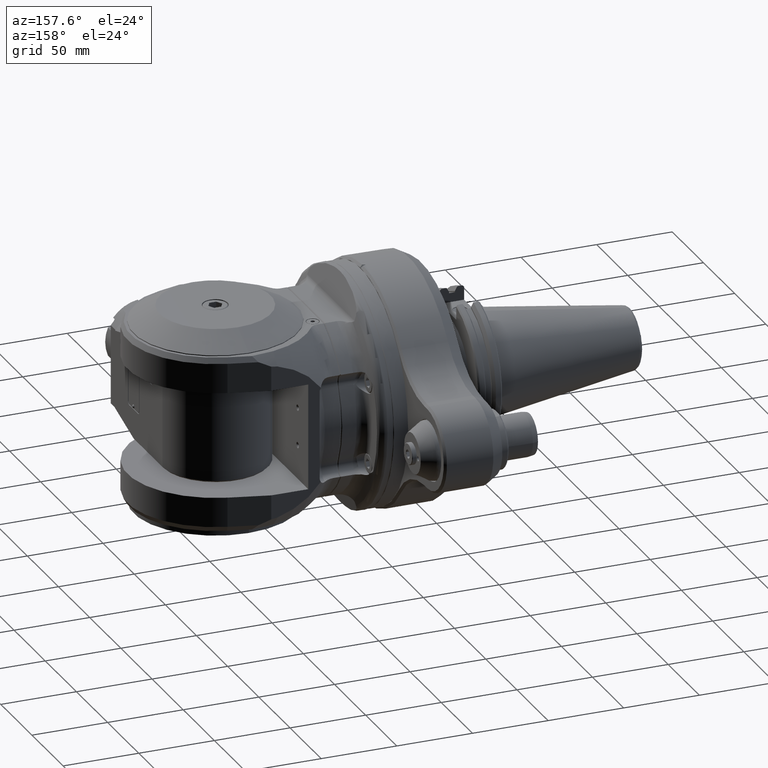
[diagram: clean part render]
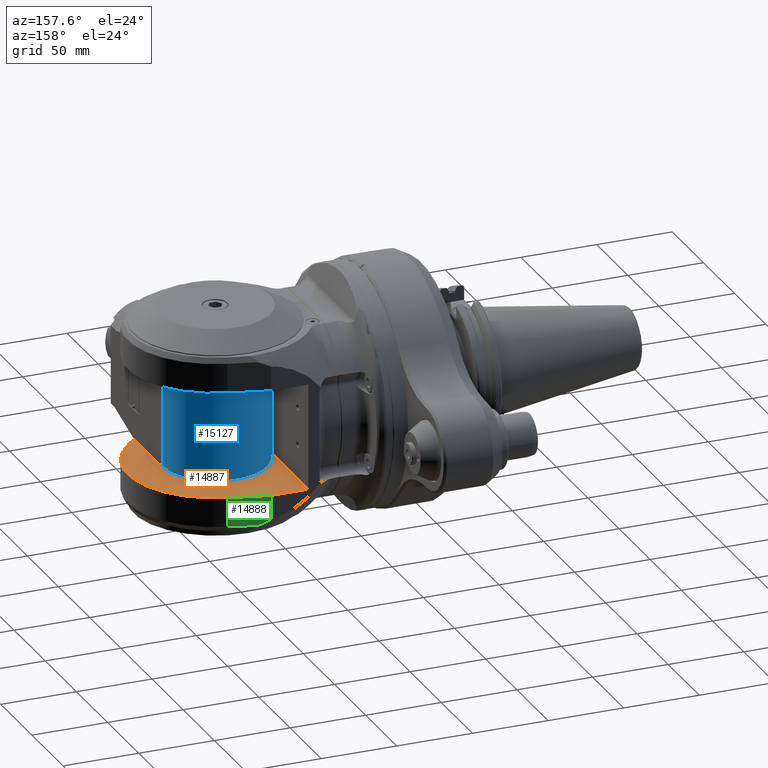
[diagram: same view with three faces highlighted in distinct colors, each labeled with its STEP entity id]
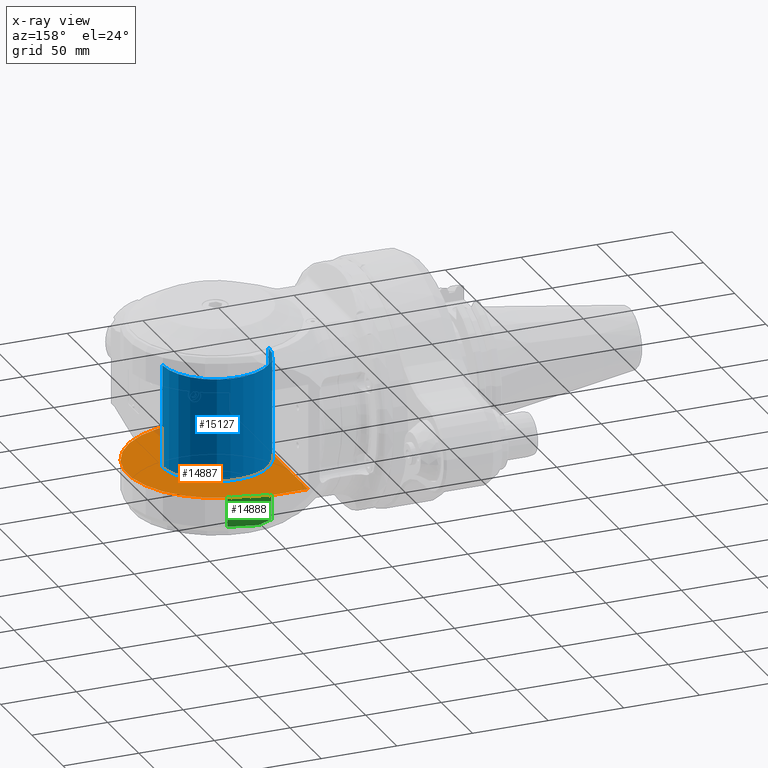
[diagram: x-ray of the same camera — body ghosted, the three highlighted faces saturated]
A machine part, auxiliary view with three faces highlighted in distinct colors.
The next image is the same camera in x-ray (body ghosted, the three faces saturated) — at least one of them is partly hidden behind the body in this view.
Their STEP definitions:

[orange] entity #14887 — the highlighted planar face has unit normal (-0, 0, -1).
#1012=PLANE('',#16270);
#1648=FACE_OUTER_BOUND('',#2586,.T.);
#2586=EDGE_LOOP('',(#11860,#11861,#11862,#11863,#11864,#11865));
#3703=LINE('',#37328,#4736);
#3710=LINE('',#37375,#4743);
#3718=LINE('',#37429,#4751);
#3719=LINE('',#37432,#4752);
#3720=LINE('',#37435,#4753);
#4736=VECTOR('',#19269,24.47559082222);
#4743=VECTOR('',#19286,126.);
#4751=VECTOR('',#19312,24.47559082222);
#4752=VECTOR('',#19315,26.9543613858507);
#4753=VECTOR('',#19318,26.9543613858507);
#5661=CIRCLE('',#16271,58.);
#6734=VERTEX_POINT('',#37324);
#6736=VERTEX_POINT('',#37327);
#6750=VERTEX_POINT('',#37373);
#6769=VERTEX_POINT('',#37427);
#6770=VERTEX_POINT('',#37431);
#6771=VERTEX_POINT('',#37433);
#8566=EDGE_CURVE('',#6736,#6734,#3703,.T.);
#8583=EDGE_CURVE('',#6734,#6750,#3710,.T.);
#8604=EDGE_CURVE('',#6769,#6750,#3718,.T.);
#8605=EDGE_CURVE('',#6769,#6770,#3719,.T.);
#8606=EDGE_CURVE('',#6770,#6771,#5661,.T.);
#8607=EDGE_CURVE('',#6771,#6736,#3720,.T.);
#11860=ORIENTED_EDGE('',*,*,#8583,.T.);
#11861=ORIENTED_EDGE('',*,*,#8604,.F.);
#11862=ORIENTED_EDGE('',*,*,#8605,.T.);
#11863=ORIENTED_EDGE('',*,*,#8606,.T.);
#11864=ORIENTED_EDGE('',*,*,#8607,.T.);
#11865=ORIENTED_EDGE('',*,*,#8566,.T.);
#14887=ADVANCED_FACE('',(#1648),#1012,.F.);
#16270=AXIS2_PLACEMENT_3D('',#37430,#19313,#19314);
#16271=AXIS2_PLACEMENT_3D('',#37434,#19316,#19317);
#19269=DIRECTION('',(-1.,0.,0.));
#19286=DIRECTION('',(0.,0.,-1.));
#19312=DIRECTION('',(-1.,0.,0.));
#19313=DIRECTION('center_axis',(0.,1.,0.));
#19314=DIRECTION('ref_axis',(1.,0.,0.));
#19315=DIRECTION('',(0.965925826289076,0.,0.258819045102493));
#19316=DIRECTION('center_axis',(0.,-1.,0.));
#19317=DIRECTION('ref_axis',(0.258819045102612,0.,-0.965925826289044));
#19318=DIRECTION('',(-0.965925826289076,0.,0.258819045102493));
#37324=CARTESIAN_POINT('',(24.5,35.,63.));
#37327=CARTESIAN_POINT('',(48.97559082222,35.,63.));
#37328=CARTESIAN_POINT('',(48.97559082222,35.,63.));
#37373=CARTESIAN_POINT('',(24.5,35.,-63.));
#37375=CARTESIAN_POINT('',(24.5,35.,63.));
#37427=CARTESIAN_POINT('',(48.97559082222,35.,-63.));
#37429=CARTESIAN_POINT('',(48.97559082222,35.,-63.));
#37430=CARTESIAN_POINT('Origin',(24.5,35.,-69.6000024));
#37431=CARTESIAN_POINT('',(75.01150461595,35.,-56.02369792477));
#37432=CARTESIAN_POINT('',(48.97559082222,35.,-63.));
#37433=CARTESIAN_POINT('',(75.01150461595,35.,56.02369792477));
#37434=CARTESIAN_POINT('Origin',(60.,35.,0.));
#37435=CARTESIAN_POINT('',(75.01150461595,35.,56.02369792477));

[blue] entity #15127 — the highlighted cylindrical surface (partial cylindrical patch) has radius 35 mm, axis along (0, -0, 1).
#1888=FACE_OUTER_BOUND('',#2852,.T.);
#2852=EDGE_LOOP('',(#12998,#12999,#13000,#13001));
#3894=LINE('',#39982,#4927);
#3901=LINE('',#40013,#4934);
#4927=VECTOR('',#20352,67.99999996999);
#4934=VECTOR('',#20375,67.99999996999);
#5847=CIRCLE('',#16708,35.);
#5848=CIRCLE('',#16709,35.);
#7068=VERTEX_POINT('',#39969);
#7071=VERTEX_POINT('',#39981);
#7083=VERTEX_POINT('',#40009);
#7084=VERTEX_POINT('',#40011);
#9114=EDGE_CURVE('',#7071,#7068,#3894,.T.);
#9127=EDGE_CURVE('',#7071,#7083,#5847,.F.);
#9128=EDGE_CURVE('',#7084,#7068,#5848,.F.);
#9129=EDGE_CURVE('',#7084,#7083,#3901,.T.);
#12998=ORIENTED_EDGE('',*,*,#9127,.F.);
#12999=ORIENTED_EDGE('',*,*,#9114,.T.);
#13000=ORIENTED_EDGE('',*,*,#9128,.F.);
#13001=ORIENTED_EDGE('',*,*,#9129,.T.);
#14449=CYLINDRICAL_SURFACE('',#16707,35.);
#15127=ADVANCED_FACE('',(#1888),#14449,.T.);
#16707=AXIS2_PLACEMENT_3D('',#40008,#20369,#20370);
#16708=AXIS2_PLACEMENT_3D('',#40010,#20371,#20372);
#16709=AXIS2_PLACEMENT_3D('',#40012,#20373,#20374);
#20352=DIRECTION('',(3.752344841731E-11,1.,7.60276298637943E-27));
#20369=DIRECTION('center_axis',(0.,-1.,0.));
#20370=DIRECTION('ref_axis',(-2.16290706997963E-14,0.,1.));
#20371=DIRECTION('center_axis',(-9.98335133621305E-25,1.,1.100166281885E-8));
#20372=DIRECTION('ref_axis',(1.,0.,5.25770186819346E-16));
#20373=DIRECTION('center_axis',(-8.77548339679659E-19,-1.,1.10016629466097E-8));
#20374=DIRECTION('ref_axis',(-1.,0.,-4.34732687940703E-14));
#20375=DIRECTION('',(-3.752334392574E-11,-1.,-3.80138149318971E-27));
#39969=CARTESIAN_POINT('',(94.9999999953189,33.9999999351853,1.16688692909199E-12));
#39981=CARTESIAN_POINT('',(94.9999999936784,-33.9999999365037,-5.13933400704154E-13));
#39982=CARTESIAN_POINT('',(94.9999999811671,-33.9999999863,1.17239551400417E-12));
#40008=CARTESIAN_POINT('Origin',(59.9999999999971,35.,1.15463194561016E-12));
#40009=CARTESIAN_POINT('',(25.0000000046731,-33.9999999351492,1.15189884475012E-12));
#40010=CARTESIAN_POINT('Origin',(59.9999999999971,-33.9999998681082,1.14932072291476E-12));
#40011=CARTESIAN_POINT('',(25.0000000063215,33.9999999365345,-5.13499577705861E-13));
#40012=CARTESIAN_POINT('Origin',(59.9999999999971,33.9999998681382,1.1597090159154E-12));
#40013=CARTESIAN_POINT('',(25.0000000188271,33.99999998627,1.15463194561016E-12));

[green] entity #14888 — the highlighted planar face has unit normal (-0.2588, -0.9659, 0).
#26=ELLIPSE('',#16273,439.769862777794,107.582639507099);
#1013=PLANE('',#16272);
#1649=FACE_OUTER_BOUND('',#2587,.T.);
#2587=EDGE_LOOP('',(#11866,#11867,#11868,#11869,#11870));
#3704=LINE('',#37330,#4737);
#3720=LINE('',#37435,#4753);
#3721=LINE('',#37438,#4754);
#3722=LINE('',#37440,#4755);
#4737=VECTOR('',#19270,16.09619086282);
#4753=VECTOR('',#19318,26.9543613858507);
#4754=VECTOR('',#19321,19.53589838486);
#4755=VECTOR('',#19322,19.0291882973205);
#6736=VERTEX_POINT('',#37327);
#6737=VERTEX_POINT('',#37329);
#6771=VERTEX_POINT('',#37433);
#6772=VERTEX_POINT('',#37437);
#6773=VERTEX_POINT('',#37439);
#8567=EDGE_CURVE('',#6737,#6736,#3704,.T.);
#8607=EDGE_CURVE('',#6771,#6736,#3720,.T.);
#8608=EDGE_CURVE('',#6772,#6771,#3721,.T.);
#8609=EDGE_CURVE('',#6772,#6773,#3722,.T.);
#8610=EDGE_CURVE('',#6773,#6737,#26,.T.);
#11866=ORIENTED_EDGE('',*,*,#8607,.F.);
#11867=ORIENTED_EDGE('',*,*,#8608,.F.);
#11868=ORIENTED_EDGE('',*,*,#8609,.T.);
#11869=ORIENTED_EDGE('',*,*,#8610,.T.);
#11870=ORIENTED_EDGE('',*,*,#8567,.T.);
#14888=ADVANCED_FACE('',(#1649),#1013,.F.);
#16272=AXIS2_PLACEMENT_3D('',#37436,#19319,#19320);
#16273=AXIS2_PLACEMENT_3D('',#37441,#19323,#19324);
#19270=DIRECTION('',(-1.598437337202E-12,-1.,4.118591647638E-13));
#19318=DIRECTION('',(-0.965925826289076,0.,0.258819045102493));
#19319=DIRECTION('center_axis',(-0.258819045102493,0.,-0.965925826289076));
#19320=DIRECTION('ref_axis',(0.965925826289076,0.,-0.258819045102493));
#19321=DIRECTION('',(9.311009750928E-14,-1.,-3.091546206363E-14));
#19322=DIRECTION('',(-0.965925826289076,0.,0.258819045102493));
#19323=DIRECTION('center_axis',(0.258819045102493,0.,0.965925826289076));
#19324=DIRECTION('ref_axis',(0.965925826289076,0.,-0.258819045102493));
#37327=CARTESIAN_POINT('',(48.97559082222,35.,63.));
#37329=CARTESIAN_POINT('',(48.97559082225,51.09619086282,62.99999999999));
#37330=CARTESIAN_POINT('',(48.97559082225,51.09619086282,62.99999999999));
#37433=CARTESIAN_POINT('',(75.01150461595,35.,56.02369792477));
#37435=CARTESIAN_POINT('',(75.01150461595,35.,56.02369792477));
#37436=CARTESIAN_POINT('Origin',(19.05000340405,-88.95817547125,71.01853698173));
#37437=CARTESIAN_POINT('',(75.01150461595,54.53589838486,56.02369792477));
#37438=CARTESIAN_POINT('',(75.01150461595,54.53589838486,56.02369792477));
#37439=CARTESIAN_POINT('',(56.63072018625,54.53589838486,60.94881426895));
#37440=CARTESIAN_POINT('',(75.01150461595,54.53589838486,56.02369792477));
#37441=CARTESIAN_POINT('Origin',(422.792272198899,0.,-37.1638778921468));